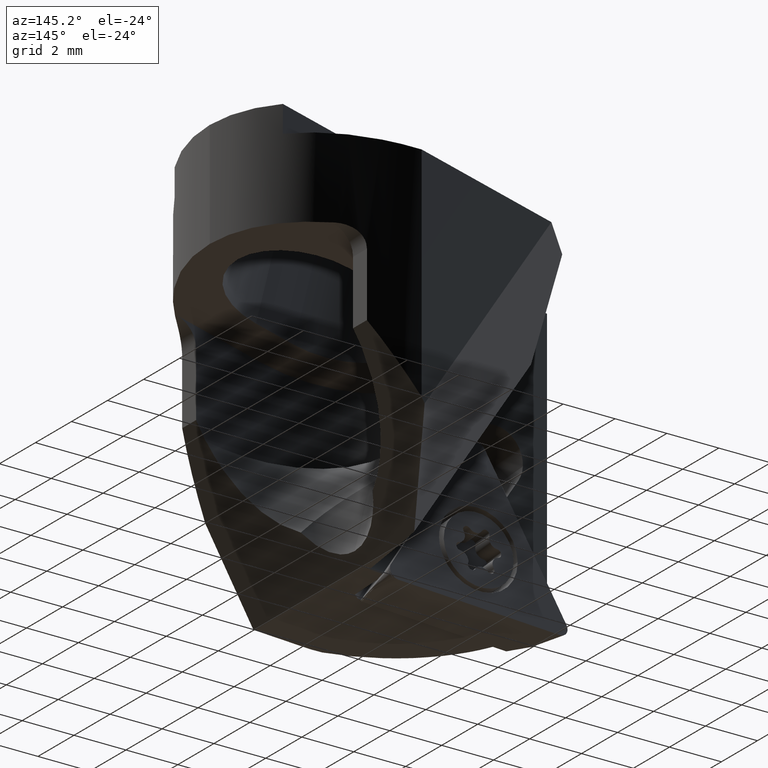
[diagram: clean part render]
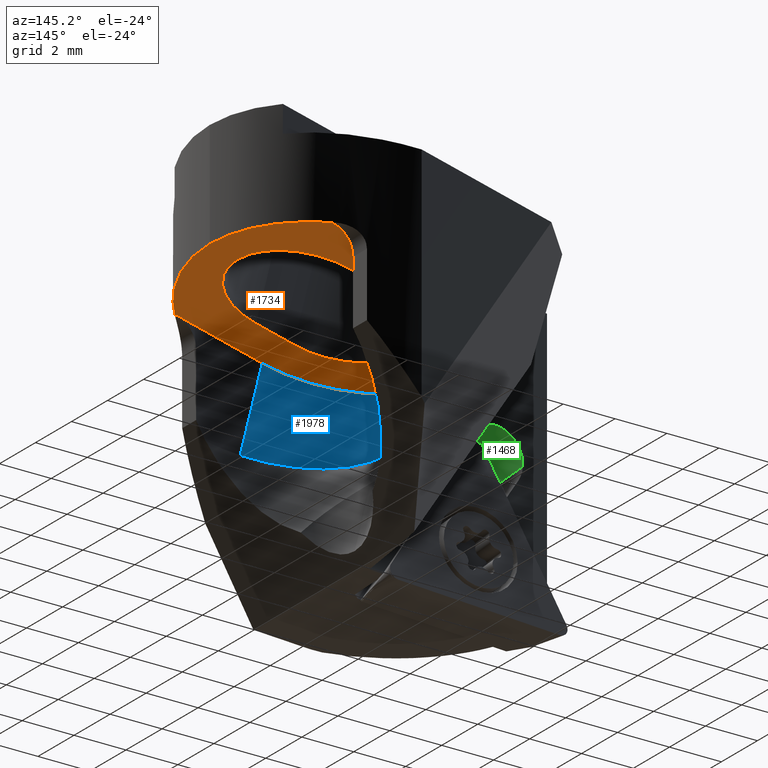
[diagram: same view with three faces highlighted in distinct colors, each labeled with its STEP entity id]
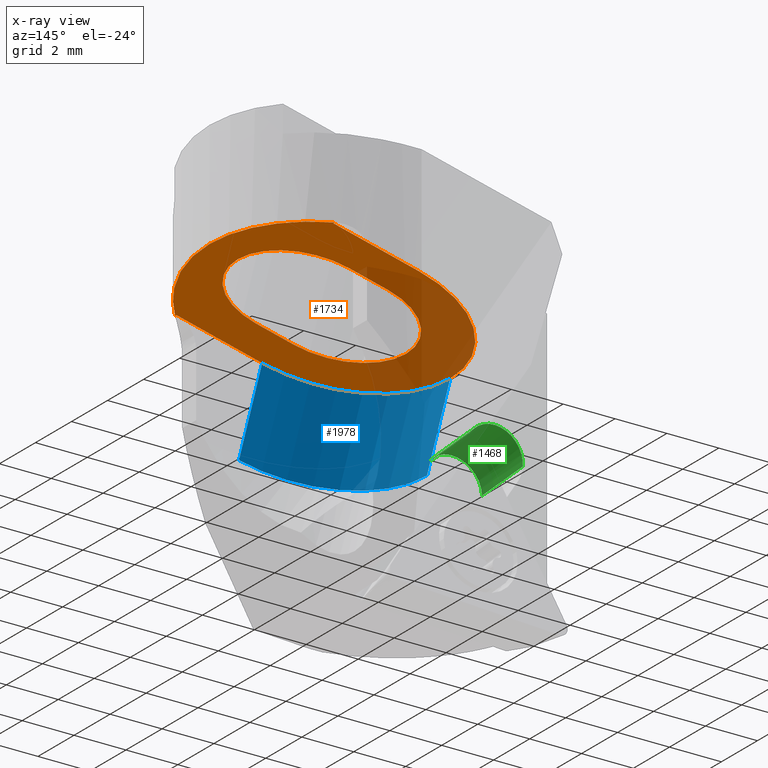
[diagram: x-ray of the same camera — body ghosted, the three highlighted faces saturated]
A machine part, auxiliary view with three faces highlighted in distinct colors.
The next image is the same camera in x-ray (body ghosted, the three faces saturated) — at least one of them is partly hidden behind the body in this view.
Their STEP definitions:

[orange] entity #1734 — the highlighted planar face has unit normal (-0.2419, 0, 0.9703).
#854=EDGE_CURVE('NONE',#1232,#1474,#2411,.T.);
#928=VERTEX_POINT('NONE',#2500);
#930=VERTEX_POINT('NONE',#2502);
#976=EDGE_CURVE('NONE',#1582,#1408,#2551,.F.);
#1044=EDGE_CURVE('NONE',#1050,#928,#2621,.T.);
#1050=VERTEX_POINT('NONE',#2627);
#1232=VERTEX_POINT('NONE',#2834);
#1252=VERTEX_POINT('NONE',#2855);
#1320=EDGE_CURVE('NONE',#1474,#2264,#2930,.F.);
#1328=EDGE_CURVE('NONE',#930,#2264,#2938,.T.);
#1408=VERTEX_POINT('NONE',#3026);
#1464=VERTEX_POINT('NONE',#3089);
#1474=VERTEX_POINT('NONE',#3101);
#1530=EDGE_CURVE('NONE',#928,#1252,#3164,.T.);
#1566=EDGE_CURVE('NONE',#1252,#1464,#3204,.T.);
#1582=VERTEX_POINT('NONE',#3221);
#1602=VERTEX_POINT('NONE',#3242);
#1728=EDGE_CURVE('NONE',#1736,#1050,#3383,.T.);
#1734=ADVANCED_FACE('NONE',(#3390,#3391),#3392,.F.);
#1736=VERTEX_POINT('NONE',#3394);
#1868=EDGE_CURVE('NONE',#1408,#1232,#3539,.T.);
#1892=EDGE_CURVE('NONE',#2306,#1736,#3565,.T.);
#1936=EDGE_CURVE('NONE',#1582,#1602,#3612,.T.);
#2004=EDGE_CURVE('NONE',#1602,#2286,#3685,.T.);
#2176=EDGE_CURVE('NONE',#1464,#2306,#3872,.T.);
#2178=EDGE_CURVE('NONE',#2286,#930,#3874,.T.);
#2264=VERTEX_POINT('NONE',#3973);
#2286=VERTEX_POINT('',#3998);
#2306=VERTEX_POINT('',#4019);
#2411=ELLIPSE('',#4137,6.69898859077433,6.5);
#2500=CARTESIAN_POINT('',(5.43006655721905,0.0,-4.38921888586328));
#2502=CARTESIAN_POINT('',(1.45185407948745,-4.35,-5.38109865782189));
#2551=LINE('',#4981,#4982);
#2621=CIRCLE('',#5116,2.6);
#2627=CARTESIAN_POINT('',(2.90729766890145,2.6,-5.0182158144224));
#2834=CARTESIAN_POINT('',(6.5,0.0,-4.12245451739959));
#2855=CARTESIAN_POINT('',(2.90729766890145,-2.6,-5.0182158144224));
#2930=LINE('',#5556,#5557);
#2938=LINE('',#5568,#5569);
#3026=CARTESIAN_POINT('',(4.75807810440034,4.42839618286644,-4.55676442473825));
#3089=CARTESIAN_POINT('',(1.45185407948745,-2.6,-5.38109865782189));
#3101=CARTESIAN_POINT('',(4.75807810440034,-4.42839618286644,-4.55676442473825));
#3164=CIRCLE('',#5877,2.6);
#3204=LINE('',#5959,#5960);
#3221=CARTESIAN_POINT('',(4.75807810440034,4.35,-4.55676442473825));
#3242=CARTESIAN_POINT('',(1.45185407948745,4.35,-5.38109865782189));
#3383=LINE('',#6224,#6225);
#3390=FACE_OUTER_BOUND('',#6232,.T.);
#3391=FACE_BOUND('',#6233,.T.);
#3392=PLANE('',#6234);
#3394=CARTESIAN_POINT('',(1.45185407948745,2.6,-5.38109865782189));
#3539=ELLIPSE('',#6428,6.69898859077433,6.5);
#3565=CIRCLE('',#6457,2.6);
#3612=LINE('',#6524,#6525);
#3685=CIRCLE('',#6623,4.35);
#3872=CIRCLE('',#6949,2.6);
#3874=CIRCLE('',#6952,4.35);
#3973=CARTESIAN_POINT('',(4.75807810440034,-4.35,-4.55676442473825));
#3998=CARTESIAN_POINT('',(-2.76893232981314,-5.32703763912734E-016,-6.43345890368042));
#4019=CARTESIAN_POINT('',(-1.07091480883014,-3.18397651993818E-016,-6.01009558638101));
#4137=AXIS2_PLACEMENT_3D('',#7229,#7230,#7231);
#4981=CARTESIAN_POINT('',(4.75807810440034,-15.0,-4.55676442473825));
#4982=VECTOR('',#7427,1.0);
#5116=AXIS2_PLACEMENT_3D('',#7478,#7479,#7480);
#5556=CARTESIAN_POINT('',(4.75807810440034,-15.0,-4.55676442473825));
#5557=VECTOR('',#7890,1.0);
#5568=CARTESIAN_POINT('',(1.45185407948745,-4.35,-5.38109865782189));
#5569=VECTOR('',#7897,1.0);
#5877=AXIS2_PLACEMENT_3D('',#8176,#8177,#8178);
#5959=CARTESIAN_POINT('',(1.45185407948745,-2.6,-5.38109865782189));
#5960=VECTOR('',#8223,1.0);
#6224=CARTESIAN_POINT('',(1.45185407948745,2.6,-5.38109865782189));
#6225=VECTOR('',#8439,1.0);
#6232=EDGE_LOOP('',(#8449,#8450,#8451,#8452,#8453,#8454,#8455,#8456));
#6233=EDGE_LOOP('',(#8457,#8458,#8459,#8460,#8461,#8462));
#6234=AXIS2_PLACEMENT_3D('',#8463,#8464,#8465);
#6428=AXIS2_PLACEMENT_3D('',#8624,#8625,#8626);
#6457=AXIS2_PLACEMENT_3D('',#8652,#8653,#8654);
#6524=CARTESIAN_POINT('',(1.45185407948745,4.35,-5.38109865782189));
#6525=VECTOR('',#8698,1.0);
#6623=AXIS2_PLACEMENT_3D('',#8770,#8771,#8772);
#6949=AXIS2_PLACEMENT_3D('',#8983,#8984,#8985);
#6952=AXIS2_PLACEMENT_3D('',#8986,#8987,#8988);
#7229=CARTESIAN_POINT('',(-7.03325254339196E-016,0.0,-5.74308653588021));
#7230=DIRECTION('',(0.241921895599661,0.0,-0.970295726275998));
#7231=DIRECTION('',(0.970295726275998,0.0,0.241921895599661));
#7427=DIRECTION('',(0.0,-1.0,0.0));
#7478=CARTESIAN_POINT('',(2.90729766890145,0.0,-5.0182158144224));
#7479=DIRECTION('',(0.241921895599661,0.0,-0.970295726275998));
#7480=DIRECTION('',(0.970295726275998,0.0,0.241921895599661));
#7890=DIRECTION('',(0.0,-1.0,0.0));
#7897=DIRECTION('',(0.970295726275998,8.76735993940619E-017,0.241921895599661));
#8176=CARTESIAN_POINT('',(2.90729766890145,0.0,-5.0182158144224));
#8177=DIRECTION('',(0.241921895599661,0.0,-0.970295726275998));
#8178=DIRECTION('',(0.970295726275998,0.0,0.241921895599661));
#8223=DIRECTION('',(-0.970295726275998,0.0,-0.241921895599661));
#8439=DIRECTION('',(0.970295726275998,0.0,0.241921895599661));
#8449=ORIENTED_EDGE('',*,*,#1868,.T.);
#8450=ORIENTED_EDGE('',*,*,#854,.T.);
#8451=ORIENTED_EDGE('',*,*,#1320,.T.);
#8452=ORIENTED_EDGE('',*,*,#1328,.F.);
#8453=ORIENTED_EDGE('',*,*,#2178,.F.);
#8454=ORIENTED_EDGE('',*,*,#2004,.F.);
#8455=ORIENTED_EDGE('',*,*,#1936,.F.);
#8456=ORIENTED_EDGE('',*,*,#976,.T.);
#8457=ORIENTED_EDGE('',*,*,#1566,.F.);
#8458=ORIENTED_EDGE('',*,*,#1530,.F.);
#8459=ORIENTED_EDGE('',*,*,#1044,.F.);
#8460=ORIENTED_EDGE('',*,*,#1728,.F.);
#8461=ORIENTED_EDGE('',*,*,#1892,.F.);
#8462=ORIENTED_EDGE('',*,*,#2176,.F.);
#8463=CARTESIAN_POINT('',(1.45185407948745,0.0,-5.38109865782189));
#8464=DIRECTION('',(-0.241921895599661,0.0,0.970295726275998));
#8465=DIRECTION('',(0.0,1.0,0.0));
#8624=CARTESIAN_POINT('',(-7.03325254339196E-016,0.0,-5.74308653588021));
#8625=DIRECTION('',(0.241921895599661,0.0,-0.970295726275998));
#8626=DIRECTION('',(0.970295726275998,0.0,0.241921895599661));
#8652=CARTESIAN_POINT('',(1.45185407948745,0.0,-5.38109865782189));
#8653=DIRECTION('',(0.241921895599661,0.0,-0.970295726275998));
#8654=DIRECTION('',(0.970295726275998,0.0,0.241921895599661));
#8698=DIRECTION('',(-0.970295726275998,0.0,-0.241921895599661));
#8770=CARTESIAN_POINT('',(1.45185407948745,0.0,-5.38109865782189));
#8771=DIRECTION('',(-0.241921895599661,0.0,0.970295726275998));
#8772=DIRECTION('',(0.970295726275998,0.0,0.241921895599661));
#8983=CARTESIAN_POINT('',(1.45185407948745,0.0,-5.38109865782189));
#8984=DIRECTION('',(0.241921895599661,0.0,-0.970295726275998));
#8985=DIRECTION('',(0.970295726275998,0.0,0.241921895599661));
#8986=CARTESIAN_POINT('',(1.45185407948745,0.0,-5.38109865782189));
#8987=DIRECTION('',(-0.241921895599661,0.0,0.970295726275998));
#8988=DIRECTION('',(0.970295726275998,0.0,0.241921895599661));

[blue] entity #1978 — the highlighted cylindrical surface (partial cylindrical patch) has radius 4.35 mm, axis along (-0.2419, -0, 0.9703).
#930=VERTEX_POINT('NONE',#2502);
#1042=VERTEX_POINT('',#2619);
#1364=EDGE_CURVE('',#1042,#2286,#2977,.T.);
#1690=VERTEX_POINT('NONE',#3342);
#1792=EDGE_CURVE('NONE',#1690,#930,#3456,.F.);
#1860=EDGE_CURVE('NONE',#1042,#1690,#3531,.F.);
#1978=ADVANCED_FACE('NONE',(#3656),#3657,.F.);
#2178=EDGE_CURVE('NONE',#2286,#930,#3874,.T.);
#2286=VERTEX_POINT('',#3998);
#2502=CARTESIAN_POINT('',(1.45185407948745,-4.35,-5.38109865782189));
#2619=CARTESIAN_POINT('',(-1.87382131609439,-5.32703763912734E-016,-10.0235530909016));
#2977=LINE('',#5625,#5626);
#3342=CARTESIAN_POINT('',(2.3469650932062,-4.35,-8.97119284504309));
#3456=LINE('',#6319,#6320);
#3531=CIRCLE('',#6417,4.35);
#3656=FACE_OUTER_BOUND('',#6584,.T.);
#3657=CYLINDRICAL_SURFACE('',#6585,4.35);
#3874=CIRCLE('',#6952,4.35);
#3998=CARTESIAN_POINT('',(-2.76893232981314,-5.32703763912734E-016,-6.43345890368042));
#5625=CARTESIAN_POINT('',(-1.87382131609439,-5.32703763912734E-016,-10.0235530909016));
#5626=VECTOR('',#7940,1.0);
#6319=CARTESIAN_POINT('',(2.3469650932062,-4.35,-8.97119284504309));
#6320=VECTOR('',#8536,1.0);
#6417=AXIS2_PLACEMENT_3D('',#8620,#8621,#8622);
#6584=EDGE_LOOP('',(#8740,#8741,#8742,#8743));
#6585=AXIS2_PLACEMENT_3D('',#8744,#8745,#8746);
#6952=AXIS2_PLACEMENT_3D('',#8986,#8987,#8988);
#7940=DIRECTION('',(-0.24192189559966,-0.0,0.970295726275998));
#8536=DIRECTION('',(0.24192189559966,0.0,-0.970295726275998));
#8620=CARTESIAN_POINT('',(2.3469650932062,0.0,-8.97119284504309));
#8621=DIRECTION('',(0.241921895599661,0.0,-0.970295726275998));
#8622=DIRECTION('',(0.970295726275998,0.0,0.241921895599661));
#8740=ORIENTED_EDGE('',*,*,#1364,.T.);
#8741=ORIENTED_EDGE('',*,*,#2178,.T.);
#8742=ORIENTED_EDGE('',*,*,#1792,.F.);
#8743=ORIENTED_EDGE('',*,*,#1860,.F.);
#8744=CARTESIAN_POINT('',(2.3469650932062,0.0,-8.97119284504309));
#8745=DIRECTION('',(-0.24192189559966,-0.0,0.970295726275998));
#8746=DIRECTION('',(0.970295726275998,0.0,0.24192189559966));
#8986=CARTESIAN_POINT('',(1.45185407948745,0.0,-5.38109865782189));
#8987=DIRECTION('',(-0.241921895599661,0.0,0.970295726275998));
#8988=DIRECTION('',(0.970295726275998,0.0,0.241921895599661));

[green] entity #1468 — the highlighted cylindrical surface (edge-blend (fillet) strip) has radius 1.1 mm, axis along (-0.0046, 0.9962, 0.087).
#866=EDGE_CURVE('NONE',#1662,#1924,#2424,.F.);
#982=EDGE_CURVE('NONE',#1662,#2044,#2557,.T.);
#1054=VERTEX_POINT('NONE',#2631);
#1468=ADVANCED_FACE('NONE',(#3093),#3094,.F.);
#1662=VERTEX_POINT('NONE',#3308);
#1738=EDGE_CURVE('NONE',#1924,#1054,#3396,.F.);
#1924=VERTEX_POINT('NONE',#3599);
#1944=EDGE_CURVE('NONE',#2044,#1054,#3621,.F.);
#2044=VERTEX_POINT('NONE',#3730);
#2424=CIRCLE('',#4157,1.1);
#2557=LINE('',#4991,#4992);
#2631=CARTESIAN_POINT('',(-3.54915486088697,0.0,-8.10549090758635));
#3093=FACE_OUTER_BOUND('',#5784,.T.);
#3094=CYLINDRICAL_SURFACE('',#5785,1.1);
#3308=CARTESIAN_POINT('',(-5.5597655816271,-2.25155774635715,-8.96097724531143));
#3396=LINE('',#6239,#6240);
#3599=CARTESIAN_POINT('',(-3.53862593389431,-2.29949340486836,-8.30639480270851));
#3621=ELLIPSE('',#6535,1.10420182129768,1.1);
#3730=CARTESIAN_POINT('',(-5.57007502068919,0.0,-8.76426142939392));
#4157=AXIS2_PLACEMENT_3D('',#7248,#7249,#7250);
#4991=CARTESIAN_POINT('',(-5.53572885741295,-7.50112295310643,-9.41962526556705));
#4992=VECTOR('',#7434,1000.0);
#5784=EDGE_LOOP('',(#8078,#8079,#8080,#8081));
#5785=AXIS2_PLACEMENT_3D('',#8082,#8083,#8084);
#6239=CARTESIAN_POINT('',(-3.51458920968015,-7.54905861161764,-8.76504282296413));
#6240=VECTOR('',#8466,1.0);
#6535=AXIS2_PLACEMENT_3D('',#8707,#8708,#8709);
#7248=CARTESIAN_POINT('',(-4.46127309339707,-2.25155774635715,-8.9034076934442));
#7249=DIRECTION('',(0.00456137913876196,-0.996194698091746,-0.08703629883128));
#7250=DIRECTION('',(-0.998629534754574,7.85510149737899E-019,-0.0523359562429372));
#7434=DIRECTION('',(-0.00456137913876213,0.996194698091746,0.08703629883128));
#8078=ORIENTED_EDGE('',*,*,#866,.F.);
#8079=ORIENTED_EDGE('',*,*,#982,.T.);
#8080=ORIENTED_EDGE('',*,*,#1944,.T.);
#8081=ORIENTED_EDGE('',*,*,#1738,.F.);
#8082=CARTESIAN_POINT('',(-4.43723636918291,-7.50112295310643,-9.36205571369982));
#8083=DIRECTION('',(-0.00456137913876196,0.996194698091746,0.08703629883128));
#8084=DIRECTION('',(-0.998629534754574,7.85510149737899E-019,-0.0523359562429372));
#8466=DIRECTION('',(0.00456137913876196,-0.996194698091746,-0.0870362988312799));
#8707=CARTESIAN_POINT('',(-4.47158253245916,0.0,-8.70669187752669));
#8708=DIRECTION('',(0.0,-1.0,0.0));
#8709=DIRECTION('',(0.0523359562429372,0.0,-0.998629534754574));